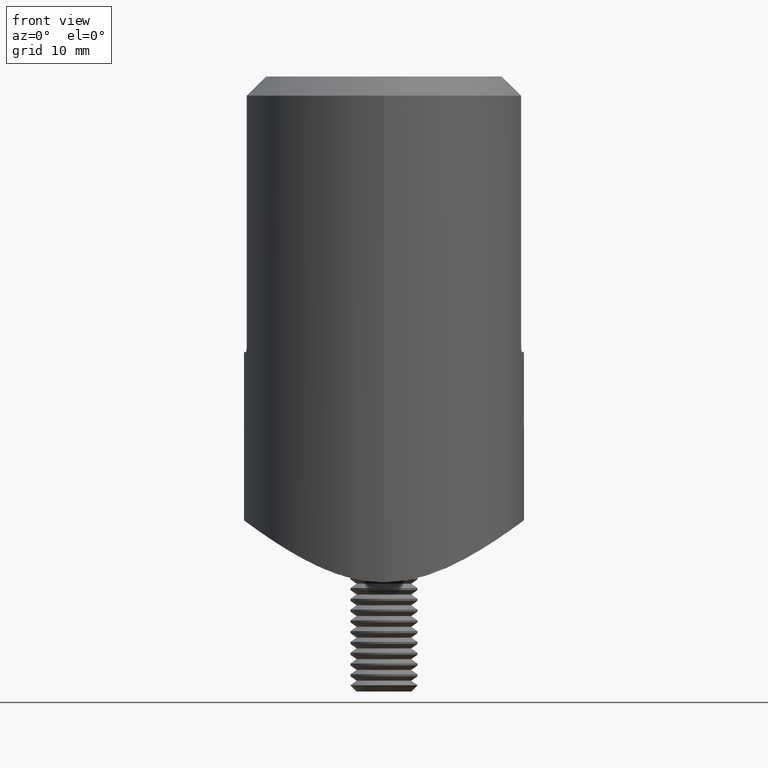
[diagram: clean part render]
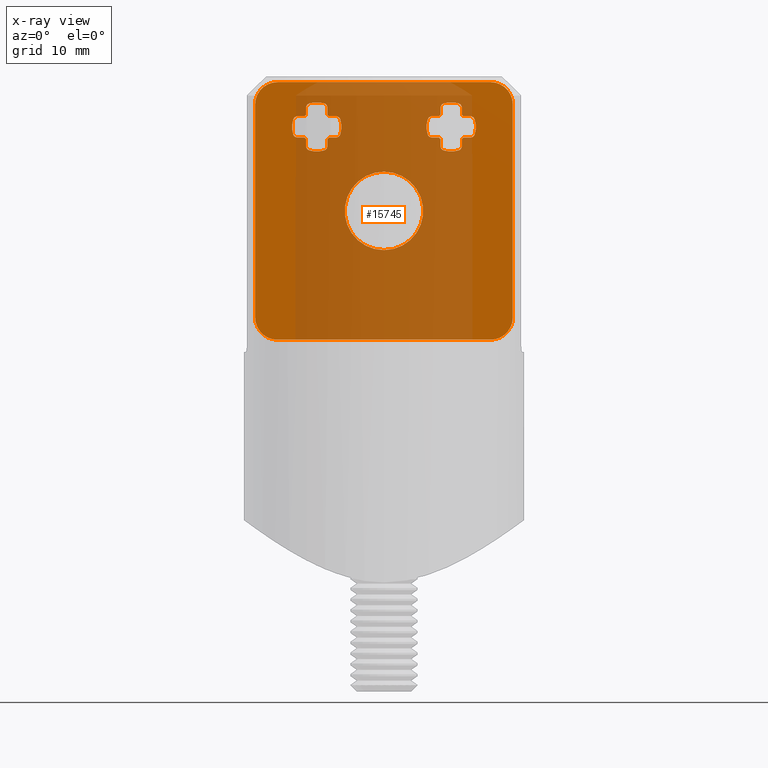
[diagram: x-ray — body ghosted, one internal face saturated and labeled with its STEP entity id]
A machine part, front view, then the same camera in x-ray: the body is ghosted and one INTERNAL B-rep face — a face not visible from any outside direction — is saturated and labeled: STEP entity #15745.
In plain terms, the highlighted planar face has unit normal (0, 1, 0).
Its self-contained STEP definition (entity closure, byte-faithful):
#15 = AXIS2_PLACEMENT_3D ( 'NONE', #4683, #12202, #19340 ) ;
#28 = VERTEX_POINT ( 'NONE', #12772 ) ;
#119 = ORIENTED_EDGE ( 'NONE', *, *, #21600, .T. ) ;
#132 = CARTESIAN_POINT ( 'NONE',  ( 4.286086349899742132, 1.000000000000000000, 6.949999999999995737 ) ) ;
#220 = CARTESIAN_POINT ( 'NONE',  ( 7.713913650100264086, 1.000000000000000000, 6.949999999999995737 ) ) ;
#321 = ORIENTED_EDGE ( 'NONE', *, *, #16782, .T. ) ;
#344 = VERTEX_POINT ( 'NONE', #14372 ) ;
#482 = EDGE_CURVE ( 'NONE', #8043, #15968, #14965, .T. ) ;
#527 = FACE_BOUND ( 'NONE', #17894, .T. ) ;
#545 = CIRCLE ( 'NONE', #20345, 1.450000000000001732 ) ;
#547 = EDGE_CURVE ( 'NONE', #18876, #2912, #727, .T. ) ;
#556 = DIRECTION ( 'NONE',  ( 0.000000000000000000, 0.000000000000000000, -1.000000000000000000 ) ) ;
#566 = VERTEX_POINT ( 'NONE', #5229 ) ;
#612 = ORIENTED_EDGE ( 'NONE', *, *, #18758, .T. ) ;
#727 = CIRCLE ( 'NONE', #3301, 2.200000000000000622 ) ;
#949 = EDGE_CURVE ( 'NONE', #8118, #2505, #7921, .T. ) ;
#983 = DIRECTION ( 'NONE',  ( -0.000000000000000000, 1.000000000000000000, 0.000000000000000000 ) ) ;
#986 = AXIS2_PLACEMENT_3D ( 'NONE', #9994, #6381, #18860 ) ;
#1068 = CARTESIAN_POINT ( 'NONE',  ( 11.50000000000000000, 1.000000000000000000, 9.499999999999998224 ) ) ;
#1095 = AXIS2_PLACEMENT_3D ( 'NONE', #2856, #6196, #6342 ) ;
#1116 = EDGE_CURVE ( 'NONE', #8118, #2912, #22203, .T. ) ;
#1294 = AXIS2_PLACEMENT_3D ( 'NONE', #17641, #19430, #14069 ) ;
#1320 = VECTOR ( 'NONE', #19211, 1000.000000000000000 ) ;
#1388 = ORIENTED_EDGE ( 'NONE', *, *, #2530, .T. ) ;
#1389 = DIRECTION ( 'NONE',  ( 0.000000000000000000, 0.000000000000000000, -1.000000000000000000 ) ) ;
#1402 = LINE ( 'NONE', #20973, #19805 ) ;
#1417 = ORIENTED_EDGE ( 'NONE', *, *, #7387, .T. ) ;
#1486 = CIRCLE ( 'NONE', #2866, 0.4000000000000001887 ) ;
#1686 = DIRECTION ( 'NONE',  ( -0.000000000000000000, 1.000000000000000000, 0.000000000000000000 ) ) ;
#1825 = CARTESIAN_POINT ( 'NONE',  ( -9.500000000000000000, 1.000000000000000000, 11.49999999999999645 ) ) ;
#1903 = DIRECTION ( 'NONE',  ( -0.000000000000000000, 1.000000000000000000, 0.000000000000000000 ) ) ;
#1983 = VECTOR ( 'NONE', #18083, 1000.000000000000000 ) ;
#1989 = CARTESIAN_POINT ( 'NONE',  ( 5.050000000000006928, 1.000000000000000000, 3.162929625227602515E-15 ) ) ;
#2005 = VERTEX_POINT ( 'NONE', #14727 ) ;
#2042 = ORIENTED_EDGE ( 'NONE', *, *, #13569, .T. ) ;
#2077 = CARTESIAN_POINT ( 'NONE',  ( -4.904554884988297836, 1.000000000000000000, 8.449999999998414779 ) ) ;
#2276 = CARTESIAN_POINT ( 'NONE',  ( -7.095445115013531812, 1.000000000000000000, 6.549999999999996270 ) ) ;
#2283 = EDGE_CURVE ( 'NONE', #2556, #13159, #6749, .T. ) ;
#2331 = VERTEX_POINT ( 'NONE', #12229 ) ;
#2389 = CARTESIAN_POINT ( 'NONE',  ( -8.094783350122538579, 1.000000000000000000, 6.827777777777773061 ) ) ;
#2450 = DIRECTION ( 'NONE',  ( 1.000000000000000000, 0.000000000000000000, 7.542275982507857147E-17 ) ) ;
#2459 = VERTEX_POINT ( 'NONE', #19521 ) ;
#2478 = VERTEX_POINT ( 'NONE', #22979 ) ;
#2505 = VERTEX_POINT ( 'NONE', #2077 ) ;
#2530 = EDGE_CURVE ( 'NONE', #11632, #22179, #19616, .T. ) ;
#2548 = AXIS2_PLACEMENT_3D ( 'NONE', #21648, #18131, #7423 ) ;
#2556 = VERTEX_POINT ( 'NONE', #9453 ) ;
#2691 = ORIENTED_EDGE ( 'NONE', *, *, #15464, .T. ) ;
#2754 = EDGE_CURVE ( 'NONE', #20515, #4951, #8431, .T. ) ;
#2760 = AXIS2_PLACEMENT_3D ( 'NONE', #13772, #4846, #11664 ) ;
#2762 = ORIENTED_EDGE ( 'NONE', *, *, #17448, .F. ) ;
#2856 = CARTESIAN_POINT ( 'NONE',  ( -5.450000000000002842, 1.000000000000000000, 5.786086349899735026 ) ) ;
#2866 = AXIS2_PLACEMENT_3D ( 'NONE', #132, #19986, #14631 ) ;
#2897 = CIRCLE ( 'NONE', #14057, 0.3999999999999993006 ) ;
#2906 = DIRECTION ( 'NONE',  ( -1.508455196501571429E-16, 0.000000000000000000, -1.000000000000000000 ) ) ;
#2912 = VERTEX_POINT ( 'NONE', #13704 ) ;
#2923 = CARTESIAN_POINT ( 'NONE',  ( 5.050000000000002487, 1.000000000000000000, 8.499999999999994671 ) ) ;
#2952 = DIRECTION ( 'NONE',  ( -8.673617379884035472E-16, 0.000000000000000000, -1.000000000000000000 ) ) ;
#2959 = VERTEX_POINT ( 'NONE', #11669 ) ;
#2967 = CIRCLE ( 'NONE', #10837, 2.000000000000000000 ) ;
#2982 = ORIENTED_EDGE ( 'NONE', *, *, #11871, .T. ) ;
#2992 = CARTESIAN_POINT ( 'NONE',  ( 0.000000000000000000, 1.000000000000000000, 8.449999999999997513 ) ) ;
#3011 = CIRCLE ( 'NONE', #12289, 1.450000000000001732 ) ;
#3012 = DIRECTION ( 'NONE',  ( -0.000000000000000000, -0.000000000000000000, 1.000000000000000000 ) ) ;
#3032 = CARTESIAN_POINT ( 'NONE',  ( -6.672222222222226939, 1.000000000000000000, 5.405216649877457868 ) ) ;
#3063 = ORIENTED_EDGE ( 'NONE', *, *, #10889, .F. ) ;
#3103 = DIRECTION ( 'NONE',  ( 0.000000000000000000, -1.000000000000000000, -0.000000000000000000 ) ) ;
#3160 = DIRECTION ( 'NONE',  ( 6.263226980648709475E-16, 0.000000000000000000, 1.000000000000000000 ) ) ;
#3292 = CARTESIAN_POINT ( 'NONE',  ( 7.713913650100264086, 1.000000000000000000, 6.549999999999997158 ) ) ;
#3301 = AXIS2_PLACEMENT_3D ( 'NONE', #12608, #7015, #14383 ) ;
#3332 = EDGE_CURVE ( 'NONE', #14922, #14221, #3747, .T. ) ;
#3388 = CARTESIAN_POINT ( 'NONE',  ( 6.672222222222226939, 1.000000000000000000, 5.405216649877455204 ) ) ;
#3451 = DIRECTION ( 'NONE',  ( 0.000000000000000000, 0.000000000000000000, -1.000000000000000000 ) ) ;
#3477 = EDGE_CURVE ( 'NONE', #566, #9828, #14192, .T. ) ;
#3505 = CARTESIAN_POINT ( 'NONE',  ( 0.000000000000000000, 1.000000000000000000, 3.499999999999999556 ) ) ;
#3555 = VECTOR ( 'NONE', #20874, 1000.000000000000000 ) ;
#3643 = EDGE_CURVE ( 'NONE', #28, #13748, #16965, .T. ) ;
#3731 = CARTESIAN_POINT ( 'NONE',  ( 9.499999999999994671, 1.000000000000000000, -11.50000000000000000 ) ) ;
#3747 = LINE ( 'NONE', #16191, #18248 ) ;
#3762 = EDGE_CURVE ( 'NONE', #12799, #12799, #17540, .T. ) ;
#3800 = VECTOR ( 'NONE', #13917, 1000.000000000000000 ) ;
#3813 = CARTESIAN_POINT ( 'NONE',  ( -6.000000000000002665, 1.000000000000000000, 7.499999999999996447 ) ) ;
#3862 = ORIENTED_EDGE ( 'NONE', *, *, #5704, .T. ) ;
#4000 = VERTEX_POINT ( 'NONE', #1825 ) ;
#4009 = CARTESIAN_POINT ( 'NONE',  ( 9.500000000000000000, 1.000000000000000000, 9.499999999999998224 ) ) ;
#4031 = LINE ( 'NONE', #22493, #11584 ) ;
#4033 = CARTESIAN_POINT ( 'NONE',  ( 7.095445115011708381, 1.000000000000000000, 6.550000000001578115 ) ) ;
#4171 = CARTESIAN_POINT ( 'NONE',  ( -11.50000000000000000, 1.000000000000000000, 11.49999999999999645 ) ) ;
#4253 = ORIENTED_EDGE ( 'NONE', *, *, #13249, .T. ) ;
#4447 = DIRECTION ( 'NONE',  ( 6.263226980648709475E-16, -0.000000000000000000, -1.000000000000000000 ) ) ;
#4476 = ORIENTED_EDGE ( 'NONE', *, *, #12016, .T. ) ;
#4493 = DIRECTION ( 'NONE',  ( -0.000000000000000000, 1.000000000000000000, 0.000000000000000000 ) ) ;
#4562 = DIRECTION ( 'NONE',  ( 0.000000000000000000, 0.000000000000000000, -1.000000000000000000 ) ) ;
#4645 = CIRCLE ( 'NONE', #2548, 0.4000000000000001887 ) ;
#4651 = EDGE_CURVE ( 'NONE', #23072, #19010, #6320, .T. ) ;
#4683 = CARTESIAN_POINT ( 'NONE',  ( 6.000000000000002665, 1.000000000000000000, 7.499999999999996447 ) ) ;
#4692 = AXIS2_PLACEMENT_3D ( 'NONE', #13108, #9474, #13031 ) ;
#4760 = CARTESIAN_POINT ( 'NONE',  ( 6.950000000000001954, 1.000000000000000000, 9.213913650100257868 ) ) ;
#4846 = DIRECTION ( 'NONE',  ( 0.000000000000000000, 1.000000000000000000, 0.000000000000000000 ) ) ;
#4848 = VERTEX_POINT ( 'NONE', #18179 ) ;
#4951 = VERTEX_POINT ( 'NONE', #9651 ) ;
#4988 = EDGE_CURVE ( 'NONE', #2005, #6400, #17642, .T. ) ;
#5047 = VECTOR ( 'NONE', #4447, 1000.000000000000000 ) ;
#5076 = AXIS2_PLACEMENT_3D ( 'NONE', #10189, #3103, #1389 ) ;
#5135 = DIRECTION ( 'NONE',  ( 2.168404344971007685E-15, 0.000000000000000000, -1.000000000000000000 ) ) ;
#5147 = CARTESIAN_POINT ( 'NONE',  ( -6.949999999998421885, 1.000000000000000000, 8.595445115011701276 ) ) ;
#5164 = DIRECTION ( 'NONE',  ( 0.000000000000000000, 0.000000000000000000, -1.000000000000000000 ) ) ;
#5208 = DIRECTION ( 'NONE',  ( 0.000000000000000000, 0.000000000000000000, -1.000000000000000000 ) ) ;
#5229 = CARTESIAN_POINT ( 'NONE',  ( 6.950000000000002842, 1.000000000000000000, 5.786086349899735026 ) ) ;
#5299 = DIRECTION ( 'NONE',  ( 0.000000000000000000, 0.000000000000000000, -1.000000000000000000 ) ) ;
#5312 = VERTEX_POINT ( 'NONE', #15804 ) ;
#5316 = PLANE ( 'NONE',  #7504 ) ;
#5414 = DIRECTION ( 'NONE',  ( 0.000000000000000000, 0.000000000000000000, -1.000000000000000000 ) ) ;
#5585 = EDGE_CURVE ( 'NONE', #15942, #15607, #20970, .T. ) ;
#5626 = CIRCLE ( 'NONE', #9485, 0.4000000000000001887 ) ;
#5691 = EDGE_CURVE ( 'NONE', #14329, #8279, #8112, .T. ) ;
#5704 = EDGE_CURVE ( 'NONE', #21686, #8043, #15117, .T. ) ;
#5726 = AXIS2_PLACEMENT_3D ( 'NONE', #14367, #16223, #10767 ) ;
#5789 = DIRECTION ( 'NONE',  ( -0.000000000000000000, 1.000000000000000000, 0.000000000000000000 ) ) ;
#5826 = EDGE_CURVE ( 'NONE', #566, #9853, #5626, .T. ) ;
#5880 = ORIENTED_EDGE ( 'NONE', *, *, #1116, .F. ) ;
#5916 = DIRECTION ( 'NONE',  ( 0.000000000000000000, -1.000000000000000000, -0.000000000000000000 ) ) ;
#5987 = VECTOR ( 'NONE', #12294, 1000.000000000000000 ) ;
#6015 = ORIENTED_EDGE ( 'NONE', *, *, #21414, .T. ) ;
#6077 = DIRECTION ( 'NONE',  ( 0.000000000000000000, 0.000000000000000000, -1.000000000000000000 ) ) ;
#6106 = VERTEX_POINT ( 'NONE', #17753 ) ;
#6149 = EDGE_LOOP ( 'NONE', ( #7598 ) ) ;
#6196 = DIRECTION ( 'NONE',  ( -0.000000000000000000, 1.000000000000000000, 0.000000000000000000 ) ) ;
#6239 = CIRCLE ( 'NONE', #13853, 2.200000000000000622 ) ;
#6246 = EDGE_CURVE ( 'NONE', #18517, #18911, #7827, .T. ) ;
#6320 = CIRCLE ( 'NONE', #12812, 1.450000000000001732 ) ;
#6334 = DIRECTION ( 'NONE',  ( 0.000000000000000000, 0.000000000000000000, -1.000000000000000000 ) ) ;
#6342 = DIRECTION ( 'NONE',  ( 0.000000000000000000, 0.000000000000000000, -1.000000000000000000 ) ) ;
#6381 = DIRECTION ( 'NONE',  ( -0.000000000000000000, 1.000000000000000000, 0.000000000000000000 ) ) ;
#6400 = VERTEX_POINT ( 'NONE', #3731 ) ;
#6439 = VECTOR ( 'NONE', #16129, 1000.000000000000000 ) ;
#6528 = VERTEX_POINT ( 'NONE', #10983 ) ;
#6589 = AXIS2_PLACEMENT_3D ( 'NONE', #20440, #22193, #13317 ) ;
#6716 = EDGE_LOOP ( 'NONE', ( #17793, #22624, #8819, #16629, #13485, #1388, #6015, #8374 ) ) ;
#6734 = AXIS2_PLACEMENT_3D ( 'NONE', #9711, #983, #6334 ) ;
#6749 = LINE ( 'NONE', #2923, #9264 ) ;
#6913 = ORIENTED_EDGE ( 'NONE', *, *, #7347, .T. ) ;
#6929 = CARTESIAN_POINT ( 'NONE',  ( 4.286086349899742132, 1.000000000000000000, 8.449999999999997513 ) ) ;
#6985 = AXIS2_PLACEMENT_3D ( 'NONE', #8589, #10650, #21169 ) ;
#7015 = DIRECTION ( 'NONE',  ( 0.000000000000000000, -1.000000000000000000, -0.000000000000000000 ) ) ;
#7089 = DIRECTION ( 'NONE',  ( 0.000000000000000000, -1.000000000000000000, -0.000000000000000000 ) ) ;
#7137 = CARTESIAN_POINT ( 'NONE',  ( 0.000000000000000000, 1.000000000000000000, 8.449999999999997513 ) ) ;
#7185 = CIRCLE ( 'NONE', #18255, 2.200000000000000622 ) ;
#7206 = EDGE_CURVE ( 'NONE', #2505, #15098, #17004, .T. ) ;
#7220 = VERTEX_POINT ( 'NONE', #16780 ) ;
#7235 = LINE ( 'NONE', #15837, #20636 ) ;
#7246 = DIRECTION ( 'NONE',  ( 0.000000000000000000, 0.000000000000000000, -1.000000000000000000 ) ) ;
#7321 = ORIENTED_EDGE ( 'NONE', *, *, #2754, .T. ) ;
#7347 = EDGE_CURVE ( 'NONE', #18820, #15942, #9184, .T. ) ;
#7387 = EDGE_CURVE ( 'NONE', #14329, #13041, #1402, .T. ) ;
#7389 = AXIS2_PLACEMENT_3D ( 'NONE', #15522, #17405, #15450 ) ;
#7397 = CARTESIAN_POINT ( 'NONE',  ( -6.949999999998421885, 1.000000000000000000, 6.404554884988290731 ) ) ;
#7423 = DIRECTION ( 'NONE',  ( 0.000000000000000000, 0.000000000000000000, -1.000000000000000000 ) ) ;
#7475 = CARTESIAN_POINT ( 'NONE',  ( 6.000000000000002665, 1.000000000000000000, 7.499999999999996447 ) ) ;
#7504 = AXIS2_PLACEMENT_3D ( 'NONE', #15865, #12302, #5164 ) ;
#7598 = ORIENTED_EDGE ( 'NONE', *, *, #3762, .F. ) ;
#7827 = CIRCLE ( 'NONE', #4692, 0.3999999999999993006 ) ;
#7844 = CARTESIAN_POINT ( 'NONE',  ( -3.905216649877456536, 1.000000000000000000, 6.827777777777773061 ) ) ;
#7853 = CARTESIAN_POINT ( 'NONE',  ( 5.050000000001583444, 1.000000000000000000, 8.595445115011701276 ) ) ;
#7921 = LINE ( 'NONE', #11983, #5987 ) ;
#7939 = CARTESIAN_POINT ( 'NONE',  ( -6.000000000000002665, 1.000000000000000000, 7.499999999999996447 ) ) ;
#7959 = CARTESIAN_POINT ( 'NONE',  ( 5.050000000000002487, 1.000000000000000000, 6.404554884986466412 ) ) ;
#8041 = AXIS2_PLACEMENT_3D ( 'NONE', #15347, #11859, #2952 ) ;
#8043 = VERTEX_POINT ( 'NONE', #12820 ) ;
#8065 = CARTESIAN_POINT ( 'NONE',  ( 9.499999999999996447, 1.000000000000000000, -9.500000000000000000 ) ) ;
#8080 = EDGE_CURVE ( 'NONE', #9828, #14922, #14491, .T. ) ;
#8112 = CIRCLE ( 'NONE', #986, 0.4000000000000001887 ) ;
#8118 = VERTEX_POINT ( 'NONE', #19380 ) ;
#8254 = DIRECTION ( 'NONE',  ( 0.000000000000000000, 0.000000000000000000, -1.000000000000000000 ) ) ;
#8279 = VERTEX_POINT ( 'NONE', #2389 ) ;
#8320 = FACE_OUTER_BOUND ( 'NONE', #6716, .T. ) ;
#8323 = DIRECTION ( 'NONE',  ( 0.000000000000000000, -1.000000000000000000, -0.000000000000000000 ) ) ;
#8327 = DIRECTION ( 'NONE',  ( 0.000000000000000000, 0.000000000000000000, -1.000000000000000000 ) ) ;
#8351 = ORIENTED_EDGE ( 'NONE', *, *, #2283, .T. ) ;
#8374 = ORIENTED_EDGE ( 'NONE', *, *, #4988, .T. ) ;
#8389 = LINE ( 'NONE', #9649, #6439 ) ;
#8400 = VECTOR ( 'NONE', #20906, 1000.000000000000000 ) ;
#8412 = CARTESIAN_POINT ( 'NONE',  ( -6.950000000000002842, 1.000000000000000000, 8.499999999999994671 ) ) ;
#8431 = CIRCLE ( 'NONE', #5726, 2.200000000000000622 ) ;
#8466 = ORIENTED_EDGE ( 'NONE', *, *, #547, .T. ) ;
#8589 = CARTESIAN_POINT ( 'NONE',  ( 4.286086349899742132, 1.000000000000000000, 8.049999999999997158 ) ) ;
#8726 = DIRECTION ( 'NONE',  ( -0.000000000000000000, 1.000000000000000000, 0.000000000000000000 ) ) ;
#8741 = CIRCLE ( 'NONE', #15, 2.200000000000000622 ) ;
#8742 = CARTESIAN_POINT ( 'NONE',  ( -4.286086349899735914, 1.000000000000000000, 8.049999999999997158 ) ) ;
#8819 = ORIENTED_EDGE ( 'NONE', *, *, #3643, .T. ) ;
#8833 = CARTESIAN_POINT ( 'NONE',  ( -4.904554884986473517, 1.000000000000000000, 6.549999999999997158 ) ) ;
#8843 = ORIENTED_EDGE ( 'NONE', *, *, #21451, .F. ) ;
#8852 = DIRECTION ( 'NONE',  ( 0.000000000000000000, 0.000000000000000000, -1.000000000000000000 ) ) ;
#8891 = AXIS2_PLACEMENT_3D ( 'NONE', #19428, #14067, #3451 ) ;
#8962 = CARTESIAN_POINT ( 'NONE',  ( -5.999999999999997335, 1.000000000000000000, 7.499999999999998224 ) ) ;
#8964 = CARTESIAN_POINT ( 'NONE',  ( -9.500000000000000000, 1.000000000000000000, 9.499999999999996447 ) ) ;
#8978 = DIRECTION ( 'NONE',  ( -0.000000000000000000, 1.000000000000000000, 0.000000000000000000 ) ) ;
#8994 = DIRECTION ( 'NONE',  ( 0.000000000000000000, 0.000000000000000000, -1.000000000000000000 ) ) ;
#9184 = CIRCLE ( 'NONE', #22528, 1.450000000000001732 ) ;
#9207 = AXIS2_PLACEMENT_3D ( 'NONE', #17197, #20632, #4562 ) ;
#9264 = VECTOR ( 'NONE', #17434, 1000.000000000000000 ) ;
#9275 = EDGE_LOOP ( 'NONE', ( #20854, #8351, #19626, #9543, #13528, #4476, #13909, #2042, #6913, #13392, #8843, #2982, #11570, #12647, #17138, #9688, #20183, #22510, #15033, #12890, #15905, #20451, #20546, #11720 ) ) ;
#9320 = CARTESIAN_POINT ( 'NONE',  ( 9.499999999999998224, 1.000000000000000000, 11.49999999999999822 ) ) ;
#9406 = EDGE_CURVE ( 'NONE', #10573, #14221, #19742, .T. ) ;
#9453 = CARTESIAN_POINT ( 'NONE',  ( 5.050000000000002487, 1.000000000000000000, 9.213913650100257868 ) ) ;
#9474 = DIRECTION ( 'NONE',  ( -0.000000000000000000, 1.000000000000000000, 0.000000000000000000 ) ) ;
#9476 = VERTEX_POINT ( 'NONE', #17915 ) ;
#9485 = AXIS2_PLACEMENT_3D ( 'NONE', #23102, #14055, #5135 ) ;
#9543 = ORIENTED_EDGE ( 'NONE', *, *, #14831, .T. ) ;
#9649 = CARTESIAN_POINT ( 'NONE',  ( -6.950000000000002842, 1.000000000000000000, 0.000000000000000000 ) ) ;
#9651 = CARTESIAN_POINT ( 'NONE',  ( -5.327777777777781054, 1.000000000000000000, 5.405216649877454316 ) ) ;
#9688 = ORIENTED_EDGE ( 'NONE', *, *, #3332, .T. ) ;
#9711 = CARTESIAN_POINT ( 'NONE',  ( -7.713913650100259645, 1.000000000000000000, 8.049999999999997158 ) ) ;
#9751 = EDGE_CURVE ( 'NONE', #2459, #15353, #4645, .T. ) ;
#9802 = CARTESIAN_POINT ( 'NONE',  ( -6.672222222222226051, 1.000000000000000000, 9.594783350122536802 ) ) ;
#9828 = VERTEX_POINT ( 'NONE', #14006 ) ;
#9853 = VERTEX_POINT ( 'NONE', #3388 ) ;
#9887 = EDGE_CURVE ( 'NONE', #2959, #21536, #18057, .T. ) ;
#9994 = CARTESIAN_POINT ( 'NONE',  ( -7.713913650100257868, 1.000000000000000000, 6.949999999999995737 ) ) ;
#10189 = CARTESIAN_POINT ( 'NONE',  ( -5.999999999999997335, 1.000000000000000000, 7.499999999999998224 ) ) ;
#10204 = CIRCLE ( 'NONE', #19705, 0.4000000000000001887 ) ;
#10230 = CARTESIAN_POINT ( 'NONE',  ( 5.450000000000002842, 1.000000000000000000, 5.786086349899735026 ) ) ;
#10239 = AXIS2_PLACEMENT_3D ( 'NONE', #23061, #1686, #19529 ) ;
#10389 = DIRECTION ( 'NONE',  ( 0.000000000000000000, 0.000000000000000000, -1.000000000000000000 ) ) ;
#10541 = DIRECTION ( 'NONE',  ( -6.263226980648714405E-16, -0.000000000000000000, 1.000000000000000000 ) ) ;
#10573 = VERTEX_POINT ( 'NONE', #13439 ) ;
#10646 = DIRECTION ( 'NONE',  ( -2.168404344971007685E-15, 0.000000000000000000, -1.000000000000000000 ) ) ;
#10650 = DIRECTION ( 'NONE',  ( -0.000000000000000000, 1.000000000000000000, 0.000000000000000000 ) ) ;
#10730 = CARTESIAN_POINT ( 'NONE',  ( 6.000000000000002665, 1.000000000000000000, 7.499999999999996447 ) ) ;
#10767 = DIRECTION ( 'NONE',  ( 0.000000000000000000, 0.000000000000000000, -1.000000000000000000 ) ) ;
#10837 = AXIS2_PLACEMENT_3D ( 'NONE', #8964, #1903, #19810 ) ;
#10857 = EDGE_CURVE ( 'NONE', #4000, #11632, #13316, .T. ) ;
#10889 = EDGE_CURVE ( 'NONE', #20515, #5312, #10204, .T. ) ;
#10983 = CARTESIAN_POINT ( 'NONE',  ( 4.286086349899742132, 1.000000000000000000, 6.549999999999997158 ) ) ;
#11128 = VECTOR ( 'NONE', #22057, 1000.000000000000000 ) ;
#11133 = CARTESIAN_POINT ( 'NONE',  ( 6.950000000000002842, 1.000000000000000000, 6.499999999999997335 ) ) ;
#11245 = EDGE_CURVE ( 'NONE', #344, #28, #21366, .T. ) ;
#11448 = CARTESIAN_POINT ( 'NONE',  ( -5.050000000000002487, 1.000000000000000000, 8.595445115013525594 ) ) ;
#11450 = ORIENTED_EDGE ( 'NONE', *, *, #5691, .F. ) ;
#11498 = CIRCLE ( 'NONE', #20113, 1.450000000000001732 ) ;
#11570 = ORIENTED_EDGE ( 'NONE', *, *, #5826, .F. ) ;
#11584 = VECTOR ( 'NONE', #2906, 1000.000000000000000 ) ;
#11632 = VERTEX_POINT ( 'NONE', #9320 ) ;
#11664 = DIRECTION ( 'NONE',  ( 0.000000000000000000, 0.000000000000000000, 1.000000000000000000 ) ) ;
#11669 = CARTESIAN_POINT ( 'NONE',  ( 3.905216649877460977, 1.000000000000000000, 8.172222222222217169 ) ) ;
#11688 = DIRECTION ( 'NONE',  ( 2.602085213965210642E-15, 0.000000000000000000, -1.000000000000000000 ) ) ;
#11720 = ORIENTED_EDGE ( 'NONE', *, *, #17335, .T. ) ;
#11859 = DIRECTION ( 'NONE',  ( -0.000000000000000000, 1.000000000000000000, 0.000000000000000000 ) ) ;
#11871 = EDGE_CURVE ( 'NONE', #9476, #9853, #20493, .T. ) ;
#11959 = CARTESIAN_POINT ( 'NONE',  ( -6.550000000000003375, 1.000000000000000000, 5.786086349899738579 ) ) ;
#11983 = CARTESIAN_POINT ( 'NONE',  ( -5.000000000000003553, 1.000000000000000000, 8.449999999999997513 ) ) ;
#11987 = CARTESIAN_POINT ( 'NONE',  ( 5.327777777777778390, 1.000000000000000000, 9.594783350122536802 ) ) ;
#11991 = VERTEX_POINT ( 'NONE', #4760 ) ;
#12005 = ORIENTED_EDGE ( 'NONE', *, *, #6246, .F. ) ;
#12016 = EDGE_CURVE ( 'NONE', #2959, #18060, #8741, .T. ) ;
#12025 = EDGE_CURVE ( 'NONE', #6106, #22884, #2897, .T. ) ;
#12050 = DIRECTION ( 'NONE',  ( -0.000000000000000000, 1.000000000000000000, 0.000000000000000000 ) ) ;
#12119 = CARTESIAN_POINT ( 'NONE',  ( 6.000000000000002665, 1.000000000000000000, 7.499999999999996447 ) ) ;
#12198 = VERTEX_POINT ( 'NONE', #7397 ) ;
#12202 = DIRECTION ( 'NONE',  ( 0.000000000000000000, -1.000000000000000000, -0.000000000000000000 ) ) ;
#12229 = CARTESIAN_POINT ( 'NONE',  ( 7.095445115013530923, 1.000000000000000000, 8.449999999999997513 ) ) ;
#12289 = AXIS2_PLACEMENT_3D ( 'NONE', #7475, #5916, #556 ) ;
#12294 = DIRECTION ( 'NONE',  ( -1.000000000000000000, 0.000000000000000000, 0.000000000000000000 ) ) ;
#12302 = DIRECTION ( 'NONE',  ( 0.000000000000000000, -1.000000000000000000, 0.000000000000000000 ) ) ;
#12470 = EDGE_CURVE ( 'NONE', #6400, #344, #20031, .T. ) ;
#12530 = AXIS2_PLACEMENT_3D ( 'NONE', #10230, #12050, #10389 ) ;
#12608 = CARTESIAN_POINT ( 'NONE',  ( -5.999999999999997335, 1.000000000000000000, 7.499999999999998224 ) ) ;
#12647 = ORIENTED_EDGE ( 'NONE', *, *, #3477, .T. ) ;
#12772 = CARTESIAN_POINT ( 'NONE',  ( -11.50000000000000355, 1.000000000000000000, -9.499999999999987566 ) ) ;
#12799 = VERTEX_POINT ( 'NONE', #3505 ) ;
#12812 = AXIS2_PLACEMENT_3D ( 'NONE', #17625, #21137, #5208 ) ;
#12820 = CARTESIAN_POINT ( 'NONE',  ( -7.095445115011707493, 1.000000000000000000, 8.449999999998414779 ) ) ;
#12890 = ORIENTED_EDGE ( 'NONE', *, *, #13974, .T. ) ;
#12959 = EDGE_CURVE ( 'NONE', #10573, #15353, #7185, .T. ) ;
#12973 = EDGE_CURVE ( 'NONE', #2331, #2478, #3011, .T. ) ;
#13031 = DIRECTION ( 'NONE',  ( 0.000000000000000000, 0.000000000000000000, -1.000000000000000000 ) ) ;
#13041 = VERTEX_POINT ( 'NONE', #2276 ) ;
#13108 = CARTESIAN_POINT ( 'NONE',  ( -6.550000000000002487, 1.000000000000000000, 9.213913650100257868 ) ) ;
#13159 = VERTEX_POINT ( 'NONE', #7853 ) ;
#13209 = LINE ( 'NONE', #8412, #8400 ) ;
#13249 = EDGE_CURVE ( 'NONE', #6106, #18911, #13387, .T. ) ;
#13316 = LINE ( 'NONE', #20355, #13856 ) ;
#13317 = DIRECTION ( 'NONE',  ( 0.000000000000000000, 0.000000000000000000, -1.000000000000000000 ) ) ;
#13387 = CIRCLE ( 'NONE', #5076, 2.200000000000000622 ) ;
#13392 = ORIENTED_EDGE ( 'NONE', *, *, #5585, .T. ) ;
#13418 = CARTESIAN_POINT ( 'NONE',  ( -5.050000000000002487, 1.000000000000000000, 0.000000000000000000 ) ) ;
#13439 = CARTESIAN_POINT ( 'NONE',  ( 8.094783350122543908, 1.000000000000000000, 6.827777777777773061 ) ) ;
#13485 = ORIENTED_EDGE ( 'NONE', *, *, #10857, .T. ) ;
#13517 = AXIS2_PLACEMENT_3D ( 'NONE', #8742, #8978, #10646 ) ;
#13521 = CARTESIAN_POINT ( 'NONE',  ( -5.050000000001583444, 1.000000000000000000, 6.404554884988290731 ) ) ;
#13528 = ORIENTED_EDGE ( 'NONE', *, *, #9887, .F. ) ;
#13541 = CARTESIAN_POINT ( 'NONE',  ( -7.713913650100259645, 1.000000000000000000, 8.449999999999997513 ) ) ;
#13560 = CARTESIAN_POINT ( 'NONE',  ( -5.050000000000002487, 1.000000000000000000, 6.499999999999998224 ) ) ;
#13569 = EDGE_CURVE ( 'NONE', #6528, #18820, #18881, .T. ) ;
#13704 = CARTESIAN_POINT ( 'NONE',  ( -3.905216649877455204, 1.000000000000000000, 8.172222222222217169 ) ) ;
#13748 = VERTEX_POINT ( 'NONE', #14559 ) ;
#13772 = CARTESIAN_POINT ( 'NONE',  ( 0.000000000000000000, 1.000000000000000000, 0.000000000000000000 ) ) ;
#13840 = EDGE_CURVE ( 'NONE', #6528, #18060, #1486, .T. ) ;
#13853 = AXIS2_PLACEMENT_3D ( 'NONE', #8962, #7089, #5299 ) ;
#13856 = VECTOR ( 'NONE', #2450, 1000.000000000000000 ) ;
#13879 = CARTESIAN_POINT ( 'NONE',  ( -11.50000000000000355, 1.000000000000000000, -11.49999999999998934 ) ) ;
#13909 = ORIENTED_EDGE ( 'NONE', *, *, #13840, .F. ) ;
#13917 = DIRECTION ( 'NONE',  ( -1.000000000000000000, -0.000000000000000000, -0.000000000000000000 ) ) ;
#13974 = EDGE_CURVE ( 'NONE', #2459, #2331, #21855, .T. ) ;
#14006 = CARTESIAN_POINT ( 'NONE',  ( 6.949999999998421885, 1.000000000000000000, 6.404554884988290731 ) ) ;
#14055 = DIRECTION ( 'NONE',  ( -0.000000000000000000, 1.000000000000000000, 0.000000000000000000 ) ) ;
#14057 = AXIS2_PLACEMENT_3D ( 'NONE', #15920, #8726, #21220 ) ;
#14065 = CIRCLE ( 'NONE', #8891, 0.3999999999999993006 ) ;
#14067 = DIRECTION ( 'NONE',  ( -0.000000000000000000, 1.000000000000000000, 0.000000000000000000 ) ) ;
#14069 = DIRECTION ( 'NONE',  ( 0.000000000000000000, 0.000000000000000000, -1.000000000000000000 ) ) ;
#14102 = DIRECTION ( 'NONE',  ( -0.000000000000000000, 1.000000000000000000, 0.000000000000000000 ) ) ;
#14171 = EDGE_CURVE ( 'NONE', #18517, #21686, #13209, .T. ) ;
#14192 = LINE ( 'NONE', #11133, #17808 ) ;
#14221 = VERTEX_POINT ( 'NONE', #3292 ) ;
#14258 = DIRECTION ( 'NONE',  ( 1.000000000000000000, -0.000000000000000000, 6.263226980648714405E-16 ) ) ;
#14318 = CIRCLE ( 'NONE', #10239, 0.4000000000000001887 ) ;
#14329 = VERTEX_POINT ( 'NONE', #16607 ) ;
#14367 = CARTESIAN_POINT ( 'NONE',  ( -5.999999999999997335, 1.000000000000000000, 7.499999999999998224 ) ) ;
#14372 = CARTESIAN_POINT ( 'NONE',  ( -9.500000000000005329, 1.000000000000000000, -11.49999999999999112 ) ) ;
#14380 = CARTESIAN_POINT ( 'NONE',  ( -5.050000000000002487, 1.000000000000000000, 9.213913650100261421 ) ) ;
#14383 = DIRECTION ( 'NONE',  ( 0.000000000000000000, 0.000000000000000000, -1.000000000000000000 ) ) ;
#14397 = DIRECTION ( 'NONE',  ( 0.000000000000000000, 0.000000000000000000, -1.000000000000000000 ) ) ;
#14401 = DIRECTION ( 'NONE',  ( 0.000000000000000000, -1.000000000000000000, -0.000000000000000000 ) ) ;
#14491 = CIRCLE ( 'NONE', #9207, 1.450000000000001732 ) ;
#14559 = CARTESIAN_POINT ( 'NONE',  ( -11.50000000000000000, 1.000000000000000000, 9.499999999999996447 ) ) ;
#14631 = DIRECTION ( 'NONE',  ( 0.000000000000000000, 0.000000000000000000, -1.000000000000000000 ) ) ;
#14727 = CARTESIAN_POINT ( 'NONE',  ( 11.49999999999999645, 1.000000000000000000, -9.500000000000000000 ) ) ;
#14831 = EDGE_CURVE ( 'NONE', #4848, #21536, #17584, .T. ) ;
#14922 = VERTEX_POINT ( 'NONE', #4033 ) ;
#14965 = LINE ( 'NONE', #2992, #3800 ) ;
#15033 = ORIENTED_EDGE ( 'NONE', *, *, #9751, .F. ) ;
#15052 = ORIENTED_EDGE ( 'NONE', *, *, #7206, .T. ) ;
#15065 = EDGE_CURVE ( 'NONE', #19943, #15968, #17281, .T. ) ;
#15098 = VERTEX_POINT ( 'NONE', #11448 ) ;
#15117 = CIRCLE ( 'NONE', #7389, 1.450000000000001732 ) ;
#15187 = EDGE_CURVE ( 'NONE', #2478, #11991, #7235, .T. ) ;
#15347 = CARTESIAN_POINT ( 'NONE',  ( -9.500000000000003553, 1.000000000000000000, -9.499999999999987566 ) ) ;
#15353 = VERTEX_POINT ( 'NONE', #22339 ) ;
#15440 = DIRECTION ( 'NONE',  ( 0.000000000000000000, 0.000000000000000000, -1.000000000000000000 ) ) ;
#15450 = DIRECTION ( 'NONE',  ( 0.000000000000000000, 0.000000000000000000, -1.000000000000000000 ) ) ;
#15464 = EDGE_CURVE ( 'NONE', #13041, #12198, #545, .T. ) ;
#15522 = CARTESIAN_POINT ( 'NONE',  ( -6.000000000000002665, 1.000000000000000000, 7.499999999999996447 ) ) ;
#15607 = VERTEX_POINT ( 'NONE', #22591 ) ;
#15621 = VERTEX_POINT ( 'NONE', #11987 ) ;
#15664 = EDGE_CURVE ( 'NONE', #19531, #23072, #16967, .T. ) ;
#15745 = ADVANCED_FACE ( 'NONE', ( #19478, #8320, #22042, #527 ), #5316, .F. ) ;
#15804 = CARTESIAN_POINT ( 'NONE',  ( -6.950000000000002842, 1.000000000000000000, 5.786086349899738579 ) ) ;
#15837 = CARTESIAN_POINT ( 'NONE',  ( 6.950000000000008171, 1.000000000000000000, 4.352942751550861476E-15 ) ) ;
#15865 = CARTESIAN_POINT ( 'NONE',  ( 0.000000000000000000, 1.000000000000000000, 0.000000000000000000 ) ) ;
#15905 = ORIENTED_EDGE ( 'NONE', *, *, #12973, .T. ) ;
#15920 = CARTESIAN_POINT ( 'NONE',  ( -5.450000000000001954, 1.000000000000000000, 9.213913650100261421 ) ) ;
#15942 = VERTEX_POINT ( 'NONE', #7959 ) ;
#15968 = VERTEX_POINT ( 'NONE', #13541 ) ;
#15970 = VECTOR ( 'NONE', #21968, 1000.000000000000000 ) ;
#16129 = DIRECTION ( 'NONE',  ( -0.000000000000000000, -0.000000000000000000, -1.000000000000000000 ) ) ;
#16153 = CARTESIAN_POINT ( 'NONE',  ( 6.672222222222225163, 1.000000000000000000, 9.594783350122536802 ) ) ;
#16191 = CARTESIAN_POINT ( 'NONE',  ( -4.102413672324902132E-15, 1.000000000000000000, 6.549999999999991829 ) ) ;
#16207 = CARTESIAN_POINT ( 'NONE',  ( 0.000000000000000000, 1.000000000000000000, 6.549999999999997158 ) ) ;
#16223 = DIRECTION ( 'NONE',  ( 0.000000000000000000, -1.000000000000000000, -0.000000000000000000 ) ) ;
#16258 = VERTEX_POINT ( 'NONE', #16153 ) ;
#16418 = VECTOR ( 'NONE', #3160, 1000.000000000000000 ) ;
#16607 = CARTESIAN_POINT ( 'NONE',  ( -7.713913650100257868, 1.000000000000000000, 6.549999999999997158 ) ) ;
#16629 = ORIENTED_EDGE ( 'NONE', *, *, #18277, .T. ) ;
#16780 = CARTESIAN_POINT ( 'NONE',  ( -4.286086349899737691, 1.000000000000000000, 6.549999999999997158 ) ) ;
#16782 = EDGE_CURVE ( 'NONE', #19010, #7220, #20498, .T. ) ;
#16826 = ORIENTED_EDGE ( 'NONE', *, *, #12025, .F. ) ;
#16919 = DIRECTION ( 'NONE',  ( 0.000000000000000000, -1.000000000000000000, -0.000000000000000000 ) ) ;
#16965 = LINE ( 'NONE', #4171, #11128 ) ;
#16967 = LINE ( 'NONE', #13560, #16418 ) ;
#16991 = CARTESIAN_POINT ( 'NONE',  ( -6.950000000000001954, 1.000000000000000000, 9.213913650100257868 ) ) ;
#17004 = CIRCLE ( 'NONE', #19223, 1.450000000000001732 ) ;
#17125 = LINE ( 'NONE', #13418, #19637 ) ;
#17138 = ORIENTED_EDGE ( 'NONE', *, *, #8080, .T. ) ;
#17197 = CARTESIAN_POINT ( 'NONE',  ( 6.000000000000002665, 1.000000000000000000, 7.499999999999996447 ) ) ;
#17281 = CIRCLE ( 'NONE', #6734, 0.4000000000000001887 ) ;
#17335 = EDGE_CURVE ( 'NONE', #16258, #15621, #20754, .T. ) ;
#17398 = EDGE_CURVE ( 'NONE', #15098, #22884, #17125, .T. ) ;
#17405 = DIRECTION ( 'NONE',  ( 0.000000000000000000, -1.000000000000000000, -0.000000000000000000 ) ) ;
#17434 = DIRECTION ( 'NONE',  ( -0.000000000000000000, 0.000000000000000000, -1.000000000000000000 ) ) ;
#17448 = EDGE_CURVE ( 'NONE', #19531, #4951, #18791, .T. ) ;
#17540 = CIRCLE ( 'NONE', #2760, 3.499999999999999556 ) ;
#17584 = LINE ( 'NONE', #7137, #1983 ) ;
#17625 = CARTESIAN_POINT ( 'NONE',  ( -6.000000000000002665, 1.000000000000000000, 7.499999999999996447 ) ) ;
#17641 = CARTESIAN_POINT ( 'NONE',  ( 6.550000000000002487, 1.000000000000000000, 9.213913650100257868 ) ) ;
#17642 = CIRCLE ( 'NONE', #19793, 2.000000000000000000 ) ;
#17753 = CARTESIAN_POINT ( 'NONE',  ( -5.327777777777780166, 1.000000000000000000, 9.594783350122540355 ) ) ;
#17793 = ORIENTED_EDGE ( 'NONE', *, *, #12470, .T. ) ;
#17808 = VECTOR ( 'NONE', #21900, 1000.000000000000000 ) ;
#17894 = EDGE_LOOP ( 'NONE', ( #3063, #7321, #2762, #21403, #21665, #321, #19778, #8466, #5880, #20539, #15052, #17987, #16826, #4253, #12005, #18445, #3862, #20935, #21154, #119, #11450, #1417, #2691, #612 ) ) ;
#17915 = CARTESIAN_POINT ( 'NONE',  ( 5.327777777777780166, 1.000000000000000000, 5.405216649877454316 ) ) ;
#17947 = DIRECTION ( 'NONE',  ( 0.000000000000000000, -1.000000000000000000, -0.000000000000000000 ) ) ;
#17987 = ORIENTED_EDGE ( 'NONE', *, *, #17398, .T. ) ;
#18057 = CIRCLE ( 'NONE', #6985, 0.4000000000000001887 ) ;
#18060 = VERTEX_POINT ( 'NONE', #18797 ) ;
#18072 = CIRCLE ( 'NONE', #1294, 0.3999999999999993006 ) ;
#18083 = DIRECTION ( 'NONE',  ( -1.000000000000000000, -0.000000000000000000, -0.000000000000000000 ) ) ;
#18131 = DIRECTION ( 'NONE',  ( -0.000000000000000000, 1.000000000000000000, 0.000000000000000000 ) ) ;
#18139 = CARTESIAN_POINT ( 'NONE',  ( -8.094783350122540355, 1.000000000000000000, 8.172222222222217169 ) ) ;
#18179 = CARTESIAN_POINT ( 'NONE',  ( 4.904554884986475294, 1.000000000000000000, 8.449999999999997513 ) ) ;
#18248 = VECTOR ( 'NONE', #14258, 1000.000000000000000 ) ;
#18255 = AXIS2_PLACEMENT_3D ( 'NONE', #21459, #17947, #7246 ) ;
#18277 = EDGE_CURVE ( 'NONE', #13748, #4000, #2967, .T. ) ;
#18305 = CARTESIAN_POINT ( 'NONE',  ( 5.000000000000003553, 1.000000000000000000, 6.549999999999997158 ) ) ;
#18445 = ORIENTED_EDGE ( 'NONE', *, *, #14171, .T. ) ;
#18517 = VERTEX_POINT ( 'NONE', #16991 ) ;
#18651 = CARTESIAN_POINT ( 'NONE',  ( 7.000000000000002665, 1.000000000000000000, 8.449999999999997513 ) ) ;
#18758 = EDGE_CURVE ( 'NONE', #12198, #5312, #8389, .T. ) ;
#18791 = CIRCLE ( 'NONE', #1095, 0.4000000000000001887 ) ;
#18797 = CARTESIAN_POINT ( 'NONE',  ( 3.905216649877461421, 1.000000000000000000, 6.827777777777773061 ) ) ;
#18820 = VERTEX_POINT ( 'NONE', #22082 ) ;
#18851 = DIRECTION ( 'NONE',  ( 1.000000000000000000, 0.000000000000000000, -6.263226980648714405E-16 ) ) ;
#18860 = DIRECTION ( 'NONE',  ( 0.000000000000000000, 0.000000000000000000, -1.000000000000000000 ) ) ;
#18876 = VERTEX_POINT ( 'NONE', #7844 ) ;
#18881 = LINE ( 'NONE', #18305, #1320 ) ;
#18911 = VERTEX_POINT ( 'NONE', #9802 ) ;
#18945 = DIRECTION ( 'NONE',  ( 0.000000000000000000, -1.000000000000000000, -0.000000000000000000 ) ) ;
#19010 = VERTEX_POINT ( 'NONE', #8833 ) ;
#19211 = DIRECTION ( 'NONE',  ( 1.000000000000000000, 0.000000000000000000, 0.000000000000000000 ) ) ;
#19223 = AXIS2_PLACEMENT_3D ( 'NONE', #7939, #16919, #6077 ) ;
#19257 = AXIS2_PLACEMENT_3D ( 'NONE', #12119, #18945, #8254 ) ;
#19340 = DIRECTION ( 'NONE',  ( 0.000000000000000000, 0.000000000000000000, -1.000000000000000000 ) ) ;
#19368 = CIRCLE ( 'NONE', #12530, 0.4000000000000001887 ) ;
#19380 = CARTESIAN_POINT ( 'NONE',  ( -4.286086349899735914, 1.000000000000000000, 8.449999999999997513 ) ) ;
#19428 = CARTESIAN_POINT ( 'NONE',  ( 5.450000000000001954, 1.000000000000000000, 9.213913650100257868 ) ) ;
#19430 = DIRECTION ( 'NONE',  ( -0.000000000000000000, 1.000000000000000000, 0.000000000000000000 ) ) ;
#19478 = FACE_BOUND ( 'NONE', #9275, .T. ) ;
#19521 = CARTESIAN_POINT ( 'NONE',  ( 7.713913650100264086, 1.000000000000000000, 8.449999999999997513 ) ) ;
#19529 = DIRECTION ( 'NONE',  ( 4.336808689942015369E-15, 0.000000000000000000, -1.000000000000000000 ) ) ;
#19531 = VERTEX_POINT ( 'NONE', #19662 ) ;
#19616 = CIRCLE ( 'NONE', #20076, 2.000000000000000000 ) ;
#19626 = ORIENTED_EDGE ( 'NONE', *, *, #21035, .T. ) ;
#19637 = VECTOR ( 'NONE', #3012, 1000.000000000000000 ) ;
#19662 = CARTESIAN_POINT ( 'NONE',  ( -5.050000000000003375, 1.000000000000000000, 5.786086349899735026 ) ) ;
#19705 = AXIS2_PLACEMENT_3D ( 'NONE', #11959, #22711, #8327 ) ;
#19742 = CIRCLE ( 'NONE', #21507, 0.4000000000000001887 ) ;
#19778 = ORIENTED_EDGE ( 'NONE', *, *, #20882, .F. ) ;
#19793 = AXIS2_PLACEMENT_3D ( 'NONE', #8065, #4493, #11688 ) ;
#19805 = VECTOR ( 'NONE', #18851, 1000.000000000000000 ) ;
#19810 = DIRECTION ( 'NONE',  ( 0.000000000000000000, 0.000000000000000000, -1.000000000000000000 ) ) ;
#19943 = VERTEX_POINT ( 'NONE', #18139 ) ;
#19986 = DIRECTION ( 'NONE',  ( -0.000000000000000000, 1.000000000000000000, 0.000000000000000000 ) ) ;
#20031 = LINE ( 'NONE', #13879, #3555 ) ;
#20076 = AXIS2_PLACEMENT_3D ( 'NONE', #4009, #5789, #14397 ) ;
#20113 = AXIS2_PLACEMENT_3D ( 'NONE', #10730, #14401, #8994 ) ;
#20183 = ORIENTED_EDGE ( 'NONE', *, *, #9406, .F. ) ;
#20345 = AXIS2_PLACEMENT_3D ( 'NONE', #3813, #21279, #8852 ) ;
#20355 = CARTESIAN_POINT ( 'NONE',  ( -11.50000000000000000, 1.000000000000000000, 11.49999999999999645 ) ) ;
#20440 = CARTESIAN_POINT ( 'NONE',  ( 6.000000000000002665, 1.000000000000000000, 7.499999999999996447 ) ) ;
#20451 = ORIENTED_EDGE ( 'NONE', *, *, #15187, .T. ) ;
#20493 = CIRCLE ( 'NONE', #19257, 2.200000000000000622 ) ;
#20498 = LINE ( 'NONE', #16207, #20794 ) ;
#20515 = VERTEX_POINT ( 'NONE', #3032 ) ;
#20539 = ORIENTED_EDGE ( 'NONE', *, *, #949, .T. ) ;
#20546 = ORIENTED_EDGE ( 'NONE', *, *, #22851, .F. ) ;
#20632 = DIRECTION ( 'NONE',  ( 0.000000000000000000, -1.000000000000000000, -0.000000000000000000 ) ) ;
#20636 = VECTOR ( 'NONE', #10541, 1000.000000000000000 ) ;
#20754 = CIRCLE ( 'NONE', #6589, 2.200000000000000622 ) ;
#20794 = VECTOR ( 'NONE', #21761, 1000.000000000000000 ) ;
#20854 = ORIENTED_EDGE ( 'NONE', *, *, #21631, .F. ) ;
#20874 = DIRECTION ( 'NONE',  ( -1.000000000000000000, -0.000000000000000000, 5.279593187755499510E-16 ) ) ;
#20882 = EDGE_CURVE ( 'NONE', #18876, #7220, #14318, .T. ) ;
#20906 = DIRECTION ( 'NONE',  ( -6.263226980648714405E-16, 0.000000000000000000, -1.000000000000000000 ) ) ;
#20935 = ORIENTED_EDGE ( 'NONE', *, *, #482, .T. ) ;
#20970 = LINE ( 'NONE', #1989, #5047 ) ;
#20973 = CARTESIAN_POINT ( 'NONE',  ( -7.000000000000002665, 1.000000000000000000, 6.549999999999996270 ) ) ;
#21035 = EDGE_CURVE ( 'NONE', #13159, #4848, #11498, .T. ) ;
#21137 = DIRECTION ( 'NONE',  ( 0.000000000000000000, -1.000000000000000000, -0.000000000000000000 ) ) ;
#21154 = ORIENTED_EDGE ( 'NONE', *, *, #15065, .F. ) ;
#21169 = DIRECTION ( 'NONE',  ( 0.000000000000000000, 0.000000000000000000, -1.000000000000000000 ) ) ;
#21220 = DIRECTION ( 'NONE',  ( 0.000000000000000000, 0.000000000000000000, -1.000000000000000000 ) ) ;
#21279 = DIRECTION ( 'NONE',  ( 0.000000000000000000, -1.000000000000000000, -0.000000000000000000 ) ) ;
#21366 = CIRCLE ( 'NONE', #8041, 2.000000000000000000 ) ;
#21403 = ORIENTED_EDGE ( 'NONE', *, *, #15664, .T. ) ;
#21414 = EDGE_CURVE ( 'NONE', #22179, #2005, #4031, .T. ) ;
#21451 = EDGE_CURVE ( 'NONE', #9476, #15607, #19368, .T. ) ;
#21459 = CARTESIAN_POINT ( 'NONE',  ( 6.000000000000002665, 1.000000000000000000, 7.499999999999996447 ) ) ;
#21507 = AXIS2_PLACEMENT_3D ( 'NONE', #220, #14102, #5414 ) ;
#21536 = VERTEX_POINT ( 'NONE', #6929 ) ;
#21600 = EDGE_CURVE ( 'NONE', #19943, #8279, #6239, .T. ) ;
#21631 = EDGE_CURVE ( 'NONE', #2556, #15621, #14065, .T. ) ;
#21648 = CARTESIAN_POINT ( 'NONE',  ( 7.713913650100264086, 1.000000000000000000, 8.049999999999997158 ) ) ;
#21665 = ORIENTED_EDGE ( 'NONE', *, *, #4651, .T. ) ;
#21686 = VERTEX_POINT ( 'NONE', #5147 ) ;
#21761 = DIRECTION ( 'NONE',  ( 1.000000000000000000, -0.000000000000000000, -0.000000000000000000 ) ) ;
#21855 = LINE ( 'NONE', #18651, #15970 ) ;
#21900 = DIRECTION ( 'NONE',  ( 0.000000000000000000, 0.000000000000000000, 1.000000000000000000 ) ) ;
#21968 = DIRECTION ( 'NONE',  ( -1.000000000000000000, 0.000000000000000000, 0.000000000000000000 ) ) ;
#22042 = FACE_BOUND ( 'NONE', #6149, .T. ) ;
#22057 = DIRECTION ( 'NONE',  ( 1.508455196501572415E-16, -0.000000000000000000, 1.000000000000000000 ) ) ;
#22082 = CARTESIAN_POINT ( 'NONE',  ( 4.904554884988296060, 1.000000000000000000, 6.550000000001578115 ) ) ;
#22179 = VERTEX_POINT ( 'NONE', #1068 ) ;
#22193 = DIRECTION ( 'NONE',  ( 0.000000000000000000, -1.000000000000000000, -0.000000000000000000 ) ) ;
#22203 = CIRCLE ( 'NONE', #13517, 0.4000000000000001887 ) ;
#22339 = CARTESIAN_POINT ( 'NONE',  ( 8.094783350122545684, 1.000000000000000000, 8.172222222222217169 ) ) ;
#22493 = CARTESIAN_POINT ( 'NONE',  ( 11.50000000000000000, 1.000000000000000000, 11.49999999999999822 ) ) ;
#22510 = ORIENTED_EDGE ( 'NONE', *, *, #12959, .T. ) ;
#22528 = AXIS2_PLACEMENT_3D ( 'NONE', #22706, #8323, #15440 ) ;
#22591 = CARTESIAN_POINT ( 'NONE',  ( 5.050000000000003375, 1.000000000000000000, 5.786086349899735026 ) ) ;
#22624 = ORIENTED_EDGE ( 'NONE', *, *, #11245, .T. ) ;
#22706 = CARTESIAN_POINT ( 'NONE',  ( 6.000000000000002665, 1.000000000000000000, 7.499999999999996447 ) ) ;
#22711 = DIRECTION ( 'NONE',  ( -0.000000000000000000, 1.000000000000000000, 0.000000000000000000 ) ) ;
#22851 = EDGE_CURVE ( 'NONE', #16258, #11991, #18072, .T. ) ;
#22884 = VERTEX_POINT ( 'NONE', #14380 ) ;
#22979 = CARTESIAN_POINT ( 'NONE',  ( 6.949999999998421885, 1.000000000000000000, 8.595445115011701276 ) ) ;
#23061 = CARTESIAN_POINT ( 'NONE',  ( -4.286086349899737691, 1.000000000000000000, 6.949999999999995737 ) ) ;
#23072 = VERTEX_POINT ( 'NONE', #13521 ) ;
#23102 = CARTESIAN_POINT ( 'NONE',  ( 6.550000000000003375, 1.000000000000000000, 5.786086349899735026 ) ) ;